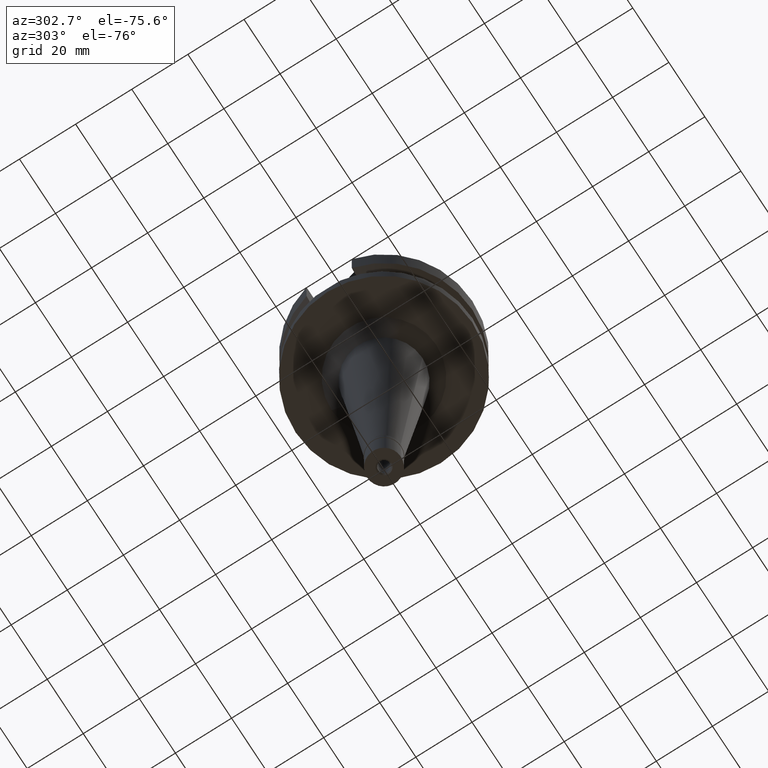
[diagram: clean part render]
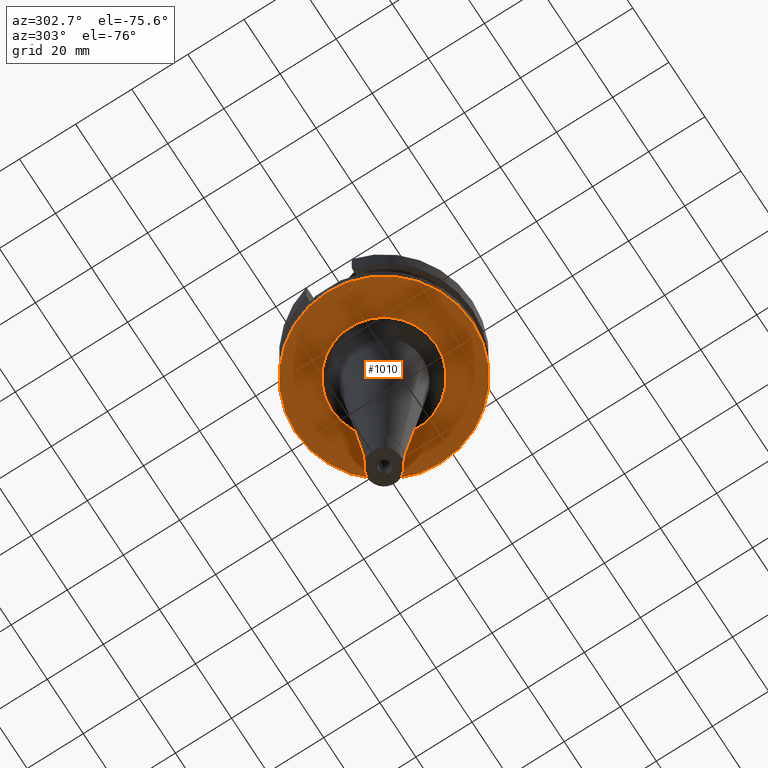
[diagram: same view with one face highlighted and labeled with its STEP entity id]
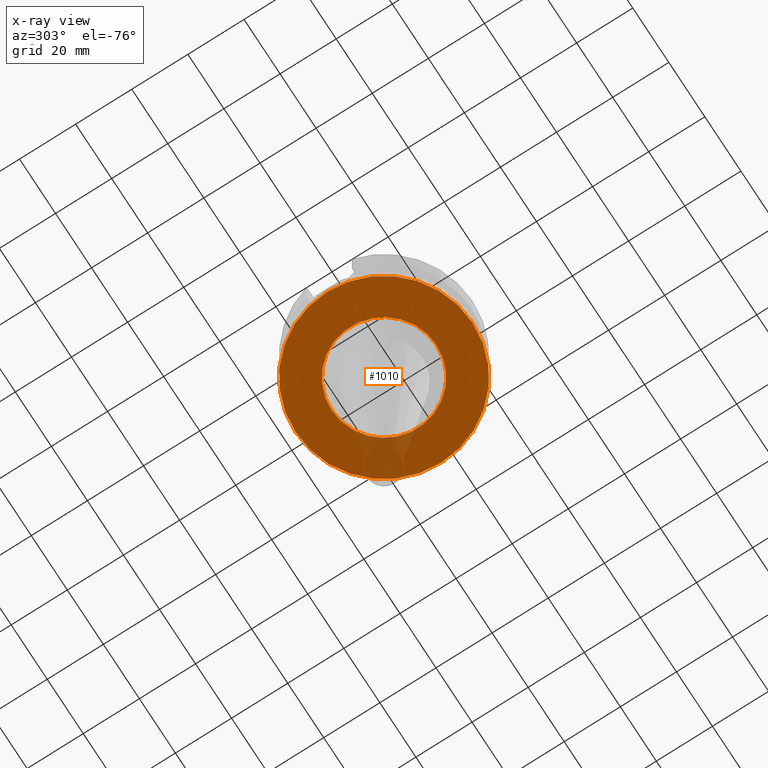
[diagram: x-ray of the same camera — body ghosted, the highlighted face saturated]
A machine part, auxiliary view. The second image highlights one B-rep face of the part: STEP entity #1010.
The next image is the same camera in x-ray: the body ghosted, the highlighted face saturated — about 9% of this face is hidden behind the body in this view.
In plain terms, the highlighted planar face has unit normal (0, 0, -1).
Its self-contained STEP definition (entity closure, byte-faithful):
#5 = CARTESIAN_POINT ( 'NONE',  ( 0.0000000000000000000, 2.145826121465999692E-14, -27.00000000000000000 ) ) ;
#74 = DIRECTION ( 'NONE',  ( 0.0000000000000000000, 0.0000000000000000000, -1.000000000000000000 ) ) ;
#81 = AXIS2_PLACEMENT_3D ( 'NONE', #1234, #326, #2414 ) ;
#100 = DIRECTION ( 'NONE',  ( 0.0000000000000000000, -1.000000000000000000, 0.0000000000000000000 ) ) ;
#125 = AXIS2_PLACEMENT_3D ( 'NONE', #5, #2824, #2112 ) ;
#183 = ORIENTED_EDGE ( 'NONE', *, *, #2415, .F. ) ;
#326 = DIRECTION ( 'NONE',  ( 0.0000000000000000000, 0.0000000000000000000, -1.000000000000000000 ) ) ;
#406 = CIRCLE ( 'NONE', #1519, 18.68150465757999967 ) ;
#424 = VERTEX_POINT ( 'NONE', #1489 ) ;
#495 = AXIS2_PLACEMENT_3D ( 'NONE', #1970, #1502, #100 ) ;
#649 = DIRECTION ( 'NONE',  ( 0.0000000000000000000, 1.000000000000000000, 0.0000000000000000000 ) ) ;
#718 = ORIENTED_EDGE ( 'NONE', *, *, #2106, .F. ) ;
#785 = CARTESIAN_POINT ( 'NONE',  ( 0.0000000000000000000, 2.145826121465999692E-14, -27.00000000000000000 ) ) ;
#800 = PLANE ( 'NONE',  #495 ) ;
#832 = FACE_OUTER_BOUND ( 'NONE', #1135, .T. ) ;
#846 = VERTEX_POINT ( 'NONE', #2719 ) ;
#909 = AXIS2_PLACEMENT_3D ( 'NONE', #785, #2418, #1223 ) ;
#1010 = ADVANCED_FACE ( 'NONE', ( #832, #2466 ), #800, .T. ) ;
#1135 = EDGE_LOOP ( 'NONE', ( #2671, #2533 ) ) ;
#1223 = DIRECTION ( 'NONE',  ( 0.0000000000000000000, 1.000000000000000000, 0.0000000000000000000 ) ) ;
#1234 = CARTESIAN_POINT ( 'NONE',  ( 0.0000000000000000000, 0.0000000000000000000, -27.00000000000000000 ) ) ;
#1455 = CARTESIAN_POINT ( 'NONE',  ( 0.0000000000000000000, 0.0000000000000000000, -27.00000000000000000 ) ) ;
#1478 = CIRCLE ( 'NONE', #125, 31.50000000000000000 ) ;
#1489 = CARTESIAN_POINT ( 'NONE',  ( 0.0000000000000000000, 31.50000000000000000, -27.00000000000000000 ) ) ;
#1502 = DIRECTION ( 'NONE',  ( 0.0000000000000000000, 0.0000000000000000000, -1.000000000000000000 ) ) ;
#1519 = AXIS2_PLACEMENT_3D ( 'NONE', #1455, #74, #649 ) ;
#1585 = EDGE_LOOP ( 'NONE', ( #718, #183 ) ) ;
#1628 = CARTESIAN_POINT ( 'NONE',  ( 0.0000000000000000000, -18.68150465757999967, -27.00000000000000000 ) ) ;
#1835 = VERTEX_POINT ( 'NONE', #1628 ) ;
#1964 = EDGE_CURVE ( 'NONE', #2802, #424, #1478, .T. ) ;
#1970 = CARTESIAN_POINT ( 'NONE',  ( 0.0000000000000000000, 0.0000000000000000000, -27.00000000000000000 ) ) ;
#2005 = CIRCLE ( 'NONE', #909, 31.50000000000000000 ) ;
#2106 = EDGE_CURVE ( 'NONE', #846, #1835, #406, .T. ) ;
#2112 = DIRECTION ( 'NONE',  ( 0.0000000000000000000, -1.000000000000000000, 0.0000000000000000000 ) ) ;
#2180 = EDGE_CURVE ( 'NONE', #424, #2802, #2005, .T. ) ;
#2301 = CIRCLE ( 'NONE', #81, 18.68150465757999967 ) ;
#2414 = DIRECTION ( 'NONE',  ( 0.0000000000000000000, -1.000000000000000000, 0.0000000000000000000 ) ) ;
#2415 = EDGE_CURVE ( 'NONE', #1835, #846, #2301, .T. ) ;
#2418 = DIRECTION ( 'NONE',  ( 0.0000000000000000000, 0.0000000000000000000, 1.000000000000000000 ) ) ;
#2466 = FACE_BOUND ( 'NONE', #1585, .T. ) ;
#2509 = CARTESIAN_POINT ( 'NONE',  ( 0.0000000000000000000, -31.50000000000000000, -27.00000000000000000 ) ) ;
#2533 = ORIENTED_EDGE ( 'NONE', *, *, #1964, .F. ) ;
#2671 = ORIENTED_EDGE ( 'NONE', *, *, #2180, .F. ) ;
#2719 = CARTESIAN_POINT ( 'NONE',  ( 0.0000000000000000000, 18.68150465757999967, -27.00000000000000000 ) ) ;
#2802 = VERTEX_POINT ( 'NONE', #2509 ) ;
#2824 = DIRECTION ( 'NONE',  ( 0.0000000000000000000, 0.0000000000000000000, 1.000000000000000000 ) ) ;